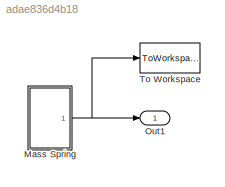
MODEL slx_adae836d4b18
KIND model
CONFIG AbsTol = auto
CONFIG EnableMultiTasking = off
CONFIG FixedStep = auto
CONFIG MaxStep = auto
CONFIG MinStep = auto
CONFIG RelTol = 1e-3
CONFIG SampleTimeConstraint = Unconstrained
CONFIG Solver = VariableStepAuto
CONFIG SolverName = VariableStepAuto
CONFIG StartTime = 0.0
CONFIG StopTime = 10.0
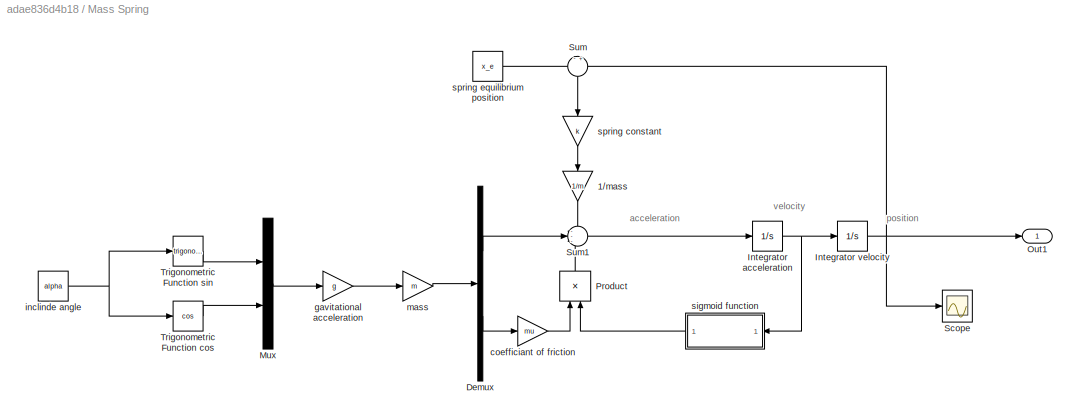
BLOCK [SubSystem] Mass Spring
  Ports = [0, 1]
  RequestExecContextInheritance = off
  Variant = off
BLOCK [Gain] Mass Spring/1//mass 
  Gain = 1/m
  OutDataTypeStr = Inherit: Inherit via internal rule
  ParamDataTypeStr = Inherit: Inherit via internal rule
  SaturateOnIntegerOverflow = off
BLOCK [Demux] Mass Spring/Demux
  DisplayOption = bar
  Outputs = 2
  Ports = [1, 2]
BLOCK [Integrator] Mass Spring/Integrator acceleration
  Ports = [1, 1]
BLOCK [Integrator] Mass Spring/Integrator velocity 
  Ports = [1, 1]
BLOCK [Mux] Mass Spring/Mux
  DisplayOption = bar
  Inputs = 2
  Ports = [2, 1]
BLOCK [Outport] Mass Spring/Out1
  IconDisplay = Port number
BLOCK [Product] Mass Spring/Product
  InputSameDT = off
  OutDataTypeStr = Inherit: Inherit via internal rule
  Ports = [2, 1]
  RndMeth = Floor
  SaturateOnIntegerOverflow = off
BLOCK [Scope] Mass Spring/Scope
  NumInputPorts = 1
  Ports = [1]
  ScopeSpecificationString = Simulink.scopes.TimeScopeBlockCfg('CurrentConfiguration', extmgr.ConfigurationSet(extmgr.Configuration('Core','General UI',true),extmgr.Configuration('Core','Source UI',true),extmgr.Configuration('Sources','WiredSimulink',true),extmgr.Configuration('Visuals','Time Domain',true,'SerializedDisplays',{struct('MinYLimReal','-1.91454','MaxYLimReal','0.21273','YLabelReal','','MinYLimMag','0.00000','MaxY...<+1370ch>
BLOCK [Sum] Mass Spring/Sum
  IconShape = round
  InputSameDT = off
  Inputs = -+
  OutDataTypeStr = Inherit: Inherit via internal rule
  Ports = [2, 1]
  SaturateOnIntegerOverflow = off
BLOCK [Sum] Mass Spring/Sum1
  IconShape = round
  InputSameDT = off
  Inputs = ---
  OutDataTypeStr = Inherit: Inherit via internal rule
  Ports = [3, 1]
  SaturateOnIntegerOverflow = off
BLOCK [Trigonometry] Mass Spring/Trigonometric Function cos
  Operator = cos
  Ports = [1, 1]
BLOCK [Trigonometry] Mass Spring/Trigonometric Function sin
  Ports = [1, 1]
BLOCK [Gain] Mass Spring/coefficiant of friction
  Gain = mu
  OutDataTypeStr = Inherit: Inherit via internal rule
  ParamDataTypeStr = Inherit: Inherit via internal rule
  SaturateOnIntegerOverflow = off
BLOCK [Gain] Mass Spring/gavitational acceleration
  Gain = g
  OutDataTypeStr = Inherit: Inherit via internal rule
  ParamDataTypeStr = Inherit: Inherit via internal rule
  SaturateOnIntegerOverflow = off
BLOCK [Constant] Mass Spring/inclinde angle
  Value = alpha
BLOCK [Gain] Mass Spring/mass
  Gain = m
  OutDataTypeStr = Inherit: Inherit via internal rule
  ParamDataTypeStr = Inherit: Inherit via internal rule
  SaturateOnIntegerOverflow = off
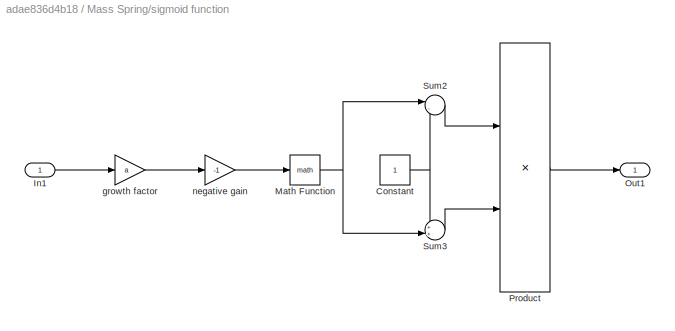
BLOCK [SubSystem] Mass Spring/sigmoid function
  Ports = [1, 1]
  RequestExecContextInheritance = off
  Variant = off
BLOCK [Constant] Mass Spring/sigmoid function/Constant
BLOCK [Inport] Mass Spring/sigmoid function/In1
  IconDisplay = Port number
BLOCK [Math] Mass Spring/sigmoid function/Math Function
  Ports = [1, 1]
BLOCK [Outport] Mass Spring/sigmoid function/Out1
  IconDisplay = Port number
BLOCK [Product] Mass Spring/sigmoid function/Product
  InputSameDT = off
  Inputs = */
  OutDataTypeStr = Inherit: Inherit via internal rule
  Ports = [2, 1]
  RndMeth = Floor
  SaturateOnIntegerOverflow = off
BLOCK [Sum] Mass Spring/sigmoid function/Sum2
  IconShape = round
  InputSameDT = off
  Inputs = |-+
  OutDataTypeStr = Inherit: Inherit via internal rule
  Ports = [2, 1]
  SaturateOnIntegerOverflow = off
BLOCK [Sum] Mass Spring/sigmoid function/Sum3
  IconShape = round
  InputSameDT = off
  Inputs = ++|
  OutDataTypeStr = Inherit: Inherit via internal rule
  Ports = [2, 1]
  SaturateOnIntegerOverflow = off
BLOCK [Gain] Mass Spring/sigmoid function/growth factor
  Gain = a
  OutDataTypeStr = Inherit: Inherit via internal rule
  ParamDataTypeStr = Inherit: Inherit via internal rule
  SaturateOnIntegerOverflow = off
BLOCK [Gain] Mass Spring/sigmoid function/negative gain
  Gain = -1
  OutDataTypeStr = Inherit: Inherit via internal rule
  ParamDataTypeStr = Inherit: Inherit via internal rule
  SaturateOnIntegerOverflow = off
BLOCK [Gain] Mass Spring/spring constant
  Gain = k
  OutDataTypeStr = Inherit: Inherit via internal rule
  ParamDataTypeStr = Inherit: Inherit via internal rule
  SaturateOnIntegerOverflow = off
BLOCK [Constant] Mass Spring/spring equilibrium position 
  Value = x_e
BLOCK [Outport] Out1
  IconDisplay = Port number
BLOCK [ToWorkspace] To Workspace
  FixptAsFi = on
  MaxDataPoints = inf
  Ports = [1]
  SampleTime = -1
  Save2DSignal = 3-D array (concatenate along third dimension)
  SaveFormat = Timeseries
  VariableName = x_1
ANNOTATION Mass Spring: acceleration
ANNOTATION Mass Spring: position
ANNOTATION Mass Spring: velocity
LINE Mass Spring/1//mass :1 -> Mass Spring/Sum1:1
LINE Mass Spring/Demux:1 -> Mass Spring/Sum1:2
LINE Mass Spring/Demux:2 -> Mass Spring/coefficiant of friction:1
NET Mass Spring/Integrator acceleration:1 -> Mass Spring/Integrator velocity :1, Mass Spring/sigmoid function:1
NET Mass Spring/Integrator velocity :1 -> Mass Spring/Out1:1, Mass Spring/Scope:1, Mass Spring/Sum:2
LINE Mass Spring/Mux:1 -> Mass Spring/gavitational acceleration:1
LINE Mass Spring/Product:1 -> Mass Spring/Sum1:3
LINE Mass Spring/Sum1:1 -> Mass Spring/Integrator acceleration:1
LINE Mass Spring/Sum:1 -> Mass Spring/spring constant:1
LINE Mass Spring/Trigonometric Function cos:1 -> Mass Spring/Mux:2
LINE Mass Spring/Trigonometric Function sin:1 -> Mass Spring/Mux:1
LINE Mass Spring/coefficiant of friction:1 -> Mass Spring/Product:1
LINE Mass Spring/gavitational acceleration:1 -> Mass Spring/mass:1
NET Mass Spring/inclinde angle:1 -> Mass Spring/Trigonometric Function cos:1, Mass Spring/Trigonometric Function sin:1
LINE Mass Spring/mass:1 -> Mass Spring/Demux:1
NET Mass Spring/sigmoid function/Constant:1 -> Mass Spring/sigmoid function/Sum2:2, Mass Spring/sigmoid function/Sum3:1
LINE Mass Spring/sigmoid function/In1:1 -> Mass Spring/sigmoid function/growth factor:1
NET Mass Spring/sigmoid function/Math Function:1 -> Mass Spring/sigmoid function/Sum2:1, Mass Spring/sigmoid function/Sum3:2
LINE Mass Spring/sigmoid function/Product:1 -> Mass Spring/sigmoid function/Out1:1
LINE Mass Spring/sigmoid function/Sum2:1 -> Mass Spring/sigmoid function/Product:1
LINE Mass Spring/sigmoid function/Sum3:1 -> Mass Spring/sigmoid function/Product:2
LINE Mass Spring/sigmoid function/growth factor:1 -> Mass Spring/sigmoid function/negative gain:1
LINE Mass Spring/sigmoid function/negative gain:1 -> Mass Spring/sigmoid function/Math Function:1
LINE Mass Spring/sigmoid function:1 -> Mass Spring/Product:2
LINE Mass Spring/spring constant:1 -> Mass Spring/1//mass :1
LINE Mass Spring/spring equilibrium position :1 -> Mass Spring/Sum:1
NET Mass Spring:1 -> Out1:1, To Workspace:1
note: NET lines group one-source signal fan-out (src -> all destinations, sorted); 1:1 wires keep LINE
